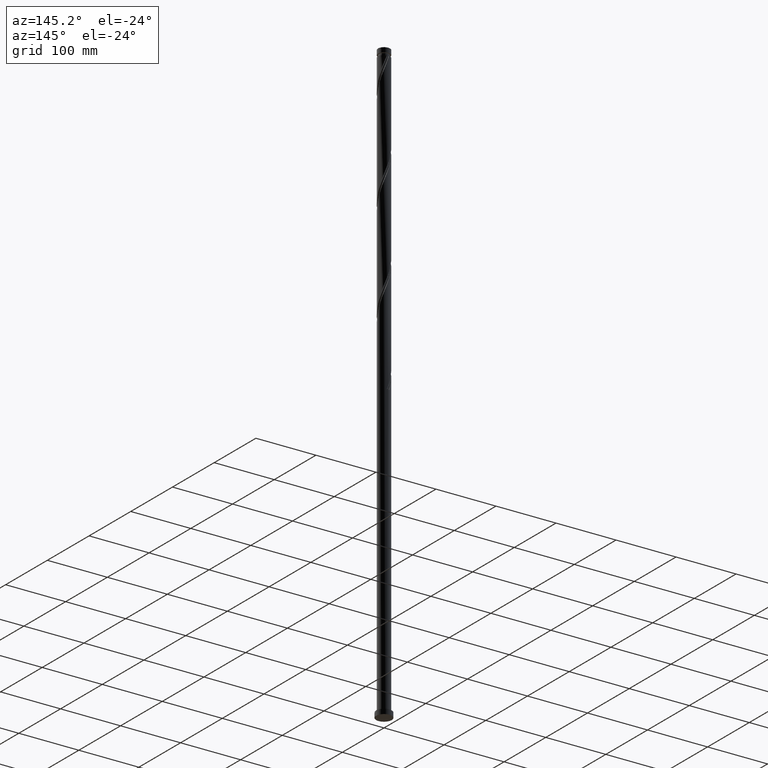
[diagram: clean part render]
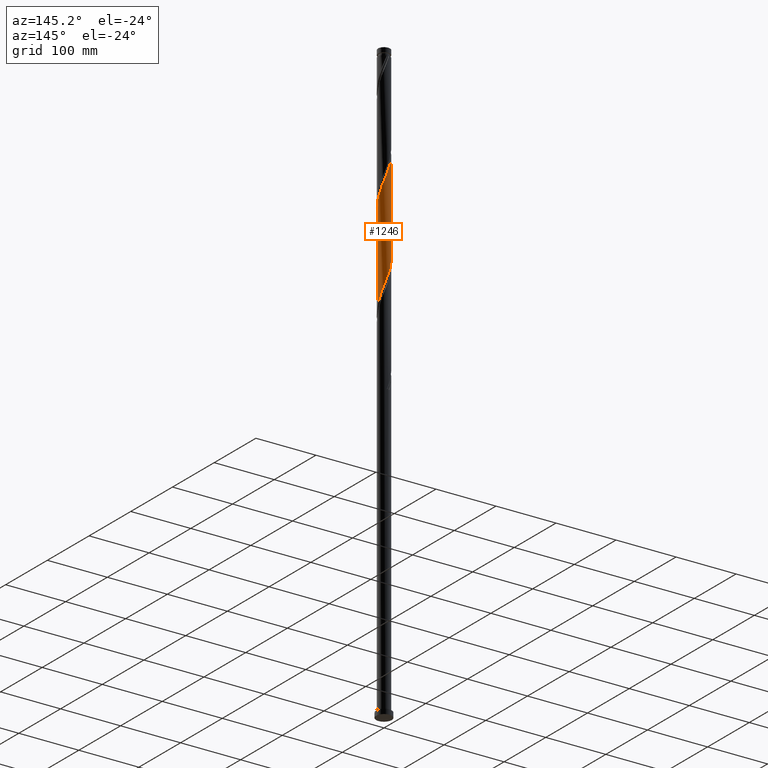
[diagram: same view with one face highlighted and labeled with its STEP entity id]
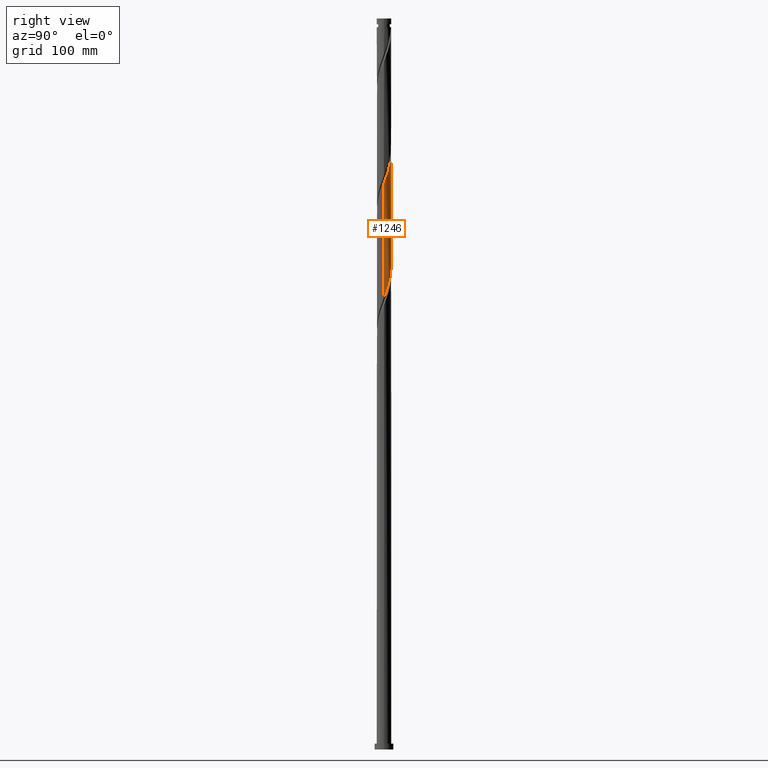
[diagram: same view with one face highlighted and labeled with its STEP entity id]
A machine part, auxiliary view. The second image highlights one B-rep face of the part: STEP entity #1246.
A second angle (right view) of the same face is appended — the face is thin or edge-on in the first view.
In plain terms, the highlighted cylindrical surface (edge-blend (fillet) strip) has radius 10 mm, axis along (-0, -0, -1).
Its self-contained STEP definition (entity closure, byte-faithful):
#32 = ORIENTED_EDGE ( 'NONE', *, *, #2404, .T. ) ;
#35 = CARTESIAN_POINT ( 'NONE',  ( 1.218698147331991777, 9.956614419138690053, 656.9961534534794509 ) ) ;
#36 = CARTESIAN_POINT ( 'NONE',  ( 7.338737473523957888, 6.838298630537159362, 794.4961534534796783 ) ) ;
#62 = CARTESIAN_POINT ( 'NONE',  ( -1.917712247535578785, 9.845901462098982648, 665.3294867868129359 ) ) ;
#63 = CARTESIAN_POINT ( 'NONE',  ( -1.989974874213251033, 9.800000000000013145, 821.5794867868129359 ) ) ;
#75 = CARTESIAN_POINT ( 'NONE',  ( -9.643385580861313144, 2.761251601094514285, 694.4961534534794509 ) ) ;
#92 = VERTEX_POINT ( 'NONE', #605 ) ;
#139 = VERTEX_POINT ( 'NONE', #430 ) ;
#162 = VERTEX_POINT ( 'NONE', #1526 ) ;
#174 = CARTESIAN_POINT ( 'NONE',  ( 9.424685787219461375, 3.434340355569663661, 627.8294867868127085 ) ) ;
#197 = DIRECTION ( 'NONE',  ( -1.000000000000000000, 0.000000000000000000, 0.000000000000000000 ) ) ;
#222 = CARTESIAN_POINT ( 'NONE',  ( 3.498532738731969349, 9.368045082941296897, 650.7461534534795646 ) ) ;
#223 = CARTESIAN_POINT ( 'NONE',  ( 9.990646392723412816, 0.4324172239434397325, 775.7461534534795646 ) ) ;
#248 = CARTESIAN_POINT ( 'NONE',  ( 4.235813876369419972, 9.092704585021287755, 648.6628201201463071 ) ) ;
#288 = CARTESIAN_POINT ( 'NONE',  ( -10.00000000000000178, 0.000000000000000000, 1000.000000000000000 ) ) ;
#371 = DIRECTION ( 'NONE',  ( -0.000000000000000000, -0.000000000000000000, -1.000000000000000000 ) ) ;
#380 = ORIENTED_EDGE ( 'NONE', *, *, #1499, .F. ) ;
#384 = FACE_OUTER_BOUND ( 'NONE', #1174, .T. ) ;
#408 = CARTESIAN_POINT ( 'NONE',  ( -0.3538636994451062057, 10.02467836630811426, 661.1628201201463071 ) ) ;
#409 = CARTESIAN_POINT ( 'NONE',  ( 4.866403606127479797, 8.771403069519754681, 802.8294867868127085 ) ) ;
#414 = VECTOR ( 'NONE', #606, 1000.000000000000000 ) ;
#421 = CARTESIAN_POINT ( 'NONE',  ( 9.935289914203547568, 1.135787973490340441, 621.5794867868127085 ) ) ;
#430 = CARTESIAN_POINT ( 'NONE',  ( 10.00000000000000355, 1.298574741823021473E-14, 618.5594316589274513 ) ) ;
#446 = CARTESIAN_POINT ( 'NONE',  ( 9.635293624659224676, 2.676026301552623110, 625.7461534534795646 ) ) ;
#461 = CARTESIAN_POINT ( 'NONE',  ( -9.935289914203563555, 1.135787973490345548, 854.9128201201461934 ) ) ;
#548 = CARTESIAN_POINT ( 'NONE',  ( -10.00000000000000178, 0.2163097758064046472, 701.3187526821943720 ) ) ;
#568 = CARTESIAN_POINT ( 'NONE',  ( 10.00000000000001421, 0.2163097758063950993, 775.1735542247647572 ) ) ;
#592 = CARTESIAN_POINT ( 'NONE',  ( 8.771403069519749351, 4.866403606127467363, 631.9961534534795646 ) ) ;
#593 = CARTESIAN_POINT ( 'NONE',  ( 9.643385580861325579, 2.761251601094518282, 781.9961534534794509 ) ) ;
#605 = CARTESIAN_POINT ( 'NONE',  ( -10.00000000000000355, 9.555718962242508133E-14, 701.8927649922605951 ) ) ;
#606 = DIRECTION ( 'NONE',  ( -0.000000000000000000, -0.000000000000000000, -1.000000000000000000 ) ) ;
#609 = CARTESIAN_POINT ( 'NONE',  ( -9.368045082941300450, 3.498532738731968905, 692.4128201201460797 ) ) ;
#610 = CARTESIAN_POINT ( 'NONE',  ( -7.370218964083914415, 6.758688661379373741, 838.2461534534793373 ) ) ;
#622 = CARTESIAN_POINT ( 'NONE',  ( -6.758688661379365747, 7.370218964083908197, 679.9128201201460797 ) ) ;
#624 = CARTESIAN_POINT ( 'NONE',  ( -9.635293624659231781, 2.676026301552627995, 850.7461534534792236 ) ) ;
#666 = CARTESIAN_POINT ( 'NONE',  ( -6.838298630537162914, 7.338737473523952559, 836.1628201201461934 ) ) ;
#744 =( BOUNDED_CURVE ( )  B_SPLINE_CURVE ( 2, ( #1357, #568, #223, #1181, #938, #593, #2265, #1369, #928, #978, #1166, #36, #1543, #2103, #1736, #409, #2117, #1688, #1039, #1943, #1223, #1777, #819, #1383, #63, #1623, #1802, #1970, #1789, #2184, #1408, #666, #610, #1762, #1583, #1049, #2337, #2323, #624, #1608, #461, #1596, #1008 ),
 .UNSPECIFIED., .F., .T. ) 
 B_SPLINE_CURVE_WITH_KNOTS ( ( 3, 2, 2, 2, 2, 2, 2, 2, 2, 2, 2, 2, 2, 2, 2, 2, 2, 2, 2, 2, 2, 3 ),
 ( 0.4295283537410736208, 0.4312500000000000222, 0.4375000000000000000, 0.4437499999999999778, 0.4499999999999999556, 0.4562500000000000444, 0.4625000000000000222, 0.4687500000000000000, 0.4749999999999999778, 0.4812499999999999556, 0.4875000000000000444, 0.4937500000000000222, 0.5000000000000000000, 0.5062499999999999778, 0.5124999999999999556, 0.5187500000000000444, 0.5250000000000000222, 0.5312500000000000000, 0.5374999999999999778, 0.5437499999999999556, 0.5500000000000000444, 0.5545283537410734542 ),
 .UNSPECIFIED. ) 
 CURVE ( )  GEOMETRIC_REPRESENTATION_ITEM ( )  RATIONAL_B_SPLINE_CURVE ( ( 0.9079722749903023082, 0.9083189438770126189, 0.9090909090909586876, 0.9062884852119839074, 0.9090909090909586876, 0.9062884852119839074, 0.9090909090909586876, 0.9062884852119839074, 0.9090909090909586876, 0.9062884852119839074, 0.9090909090909586876, 0.9062884852119839074, 0.9090909090909586876, 0.9062884852119839074, 0.9090909090909586876, 0.9062884852119839074, 0.9090909090909586876, 0.9062884852119839074, 0.9090909090909586876, 0.9062884852119839074, 0.9090909090909586876, 0.9062884852119839074, 0.9090909090909586876, 0.9062884852119839074, 0.9090909090909586876, 0.9062884852119839074, 0.9090909090909586876, 0.9062884852119839074, 0.9090909090909586876, 0.9062884852119839074, 0.9090909090909586876, 0.9062884852119839074, 0.9090909090909586876, 0.9062884852119839074, 0.9090909090909586876, 0.9062884852119839074, 0.9090909090909586876, 0.9062884852119839074, 0.9090909090909586876, 0.9062884852119839074, 0.9090909090909586876, 0.9070604504259300871, 0.9079722749903023082 ) ) 
 REPRESENTATION_ITEM ( '' )  );
#787 = CARTESIAN_POINT ( 'NONE',  ( 6.222187493342493880, 7.828434249432788761, 642.4128201201463071 ) ) ;
#818 = CARTESIAN_POINT ( 'NONE',  ( 7.370218964083908197, 6.758688661379363971, 638.2461534534795646 ) ) ;
#819 = CARTESIAN_POINT ( 'NONE',  ( -0.4324172239434393439, 9.990646392723412816, 817.4128201201461934 ) ) ;
#831 = CARTESIAN_POINT ( 'NONE',  ( -2.676026301552623554, 9.635293624659222900, 667.4128201201460797 ) ) ;
#873 = EDGE_CURVE ( 'NONE', #162, #92, #1962, .T. ) ;
#924 = ORIENTED_EDGE ( 'NONE', *, *, #873, .F. ) ;
#928 = CARTESIAN_POINT ( 'NONE',  ( 8.705417805181475899, 4.920945116258629959, 788.2461534534794509 ) ) ;
#938 = CARTESIAN_POINT ( 'NONE',  ( 9.800000000000013145, 1.989974874213251477, 779.9128201201460797 ) ) ;
#965 = CARTESIAN_POINT ( 'NONE',  ( 10.00000000000001421, 9.552733732950904056E-15, 774.5995419146984204 ) ) ;
#976 = CARTESIAN_POINT ( 'NONE',  ( 4.920945116258629959, 8.705417805181461688, 646.5794867868128222 ) ) ;
#978 = CARTESIAN_POINT ( 'NONE',  ( 8.318131025341649831, 5.606076356147839057, 790.3294867868129359 ) ) ;
#1005 = CARTESIAN_POINT ( 'NONE',  ( -9.092704585021285979, 4.235813876369422637, 690.3294867868125948 ) ) ;
#1008 = CARTESIAN_POINT ( 'NONE',  ( -10.00000000000001776, 8.657164945486758477E-16, 857.9328752480315643 ) ) ;
#1021 = CARTESIAN_POINT ( 'NONE',  ( -7.828434249432788761, 6.222187493342492104, 684.0794867868129359 ) ) ;
#1027 = DIRECTION ( 'NONE',  ( -0.000000000000000000, -0.000000000000000000, -1.000000000000000000 ) ) ;
#1039 = CARTESIAN_POINT ( 'NONE',  ( 2.676026301552629771, 9.635293624659231781, 809.0794867868127085 ) ) ;
#1049 = CARTESIAN_POINT ( 'NONE',  ( -8.771403069519758233, 4.866403606127474468, 844.4961534534795646 ) ) ;
#1124 = VECTOR ( 'NONE', #1027, 1000.000000000000000 ) ;
#1140 = CARTESIAN_POINT ( 'NONE',  ( 0.000000000000000000, 0.000000000000000000, 1000.000000000000000 ) ) ;
#1166 = CARTESIAN_POINT ( 'NONE',  ( 7.828434249432801195, 6.222187493342497433, 792.4128201201459660 ) ) ;
#1174 = EDGE_LOOP ( 'NONE', ( #380, #32, #2098, #924 ) ) ;
#1181 = CARTESIAN_POINT ( 'NONE',  ( 9.956614419138704264, 1.218698147331985560, 777.8294867868128222 ) ) ;
#1194 = CARTESIAN_POINT ( 'NONE',  ( -8.318131025341637397, 5.606076356147831952, 686.1628201201464208 ) ) ;
#1205 = CARTESIAN_POINT ( 'NONE',  ( -9.956614419138690053, 1.218698147331992665, 698.6628201201463071 ) ) ;
#1223 = CARTESIAN_POINT ( 'NONE',  ( 1.135787973490348435, 9.935289914203565331, 813.2461534534794509 ) ) ;
#1246 = ADVANCED_FACE ( 'NONE', ( #384 ), #2292, .T. ) ;
#1281 =( BOUNDED_CURVE ( )  B_SPLINE_CURVE ( 2, ( #1776, #548, #1582, #1205, #2322, #75, #609, #1005, #1915, #1194, #1021, #2130, #622, #1382, #1508, #2116, #1323, #1942, #831, #62, #2102, #408, #1735, #35, #1595, #2306, #222, #248, #976, #1368, #787, #1554, #818, #2348, #1954, #592, #2336, #174, #446, #2443, #421, #1394, #2144 ),
 .UNSPECIFIED., .F., .T. ) 
 B_SPLINE_CURVE_WITH_KNOTS ( ( 3, 2, 2, 2, 2, 2, 2, 2, 2, 2, 2, 2, 2, 2, 2, 2, 2, 2, 2, 2, 2, 3 ),
 ( 0.6795283537410736763, 0.6812500000000000222, 0.6875000000000000000, 0.6937499999999999778, 0.6999999999999999556, 0.7062500000000000444, 0.7125000000000000222, 0.7187500000000000000, 0.7249999999999999778, 0.7312499999999999556, 0.7375000000000000444, 0.7437500000000000222, 0.7500000000000000000, 0.7562499999999999778, 0.7624999999999999556, 0.7687500000000000444, 0.7750000000000000222, 0.7812500000000000000, 0.7874999999999999778, 0.7937499999999999556, 0.8000000000000000444, 0.8045283537410733432 ),
 .UNSPECIFIED. ) 
 CURVE ( )  GEOMETRIC_REPRESENTATION_ITEM ( )  RATIONAL_B_SPLINE_CURVE ( ( 0.9079722749902968681, 0.9083189438770071789, 0.9090909090909532475, 0.9062884852119784673, 0.9090909090909532475, 0.9062884852119784673, 0.9090909090909532475, 0.9062884852119784673, 0.9090909090909532475, 0.9062884852119784673, 0.9090909090909532475, 0.9062884852119784673, 0.9090909090909532475, 0.9062884852119784673, 0.9090909090909532475, 0.9062884852119784673, 0.9090909090909532475, 0.9062884852119784673, 0.9090909090909532475, 0.9062884852119784673, 0.9090909090909532475, 0.9062884852119784673, 0.9090909090909532475, 0.9062884852119784673, 0.9090909090909532475, 0.9062884852119784673, 0.9090909090909532475, 0.9062884852119784673, 0.9090909090909532475, 0.9062884852119784673, 0.9090909090909532475, 0.9062884852119784673, 0.9090909090909532475, 0.9062884852119784673, 0.9090909090909532475, 0.9062884852119784673, 0.9090909090909532475, 0.9062884852119784673, 0.9090909090909532475, 0.9062884852119784673, 0.9090909090909532475, 0.9070604504259247580, 0.9079722749902967571 ) ) 
 REPRESENTATION_ITEM ( '' )  );
#1323 = CARTESIAN_POINT ( 'NONE',  ( -4.150371980848566622, 9.098044428369604475, 671.5794867868129359 ) ) ;
#1357 = CARTESIAN_POINT ( 'NONE',  ( 10.00000000000001421, 9.552733732950904056E-15, 774.5995419146984204 ) ) ;
#1364 = VERTEX_POINT ( 'NONE', #965 ) ;
#1368 = CARTESIAN_POINT ( 'NONE',  ( 5.606076356147837281, 8.318131025341633844, 644.4961534534796783 ) ) ;
#1369 = CARTESIAN_POINT ( 'NONE',  ( 9.092704585021301966, 4.235813876369419084, 786.1628201201461934 ) ) ;
#1382 = CARTESIAN_POINT ( 'NONE',  ( -6.178639849234791370, 7.902139297630660586, 677.8294867868127085 ) ) ;
#1383 = CARTESIAN_POINT ( 'NONE',  ( -1.218698147331984893, 9.956614419138704264, 819.4961534534793373 ) ) ;
#1394 = CARTESIAN_POINT ( 'NONE',  ( 10.00000000000000000, 0.5697373744643259297, 620.0713201772722414 ) ) ;
#1408 = CARTESIAN_POINT ( 'NONE',  ( -6.222187493342498321, 7.828434249432799419, 834.0794867868127085 ) ) ;
#1499 = EDGE_CURVE ( 'NONE', #1364, #162, #744, .T. ) ;
#1508 = CARTESIAN_POINT ( 'NONE',  ( -5.522521727681128034, 8.336771183575205413, 675.7461534534795646 ) ) ;
#1526 = CARTESIAN_POINT ( 'NONE',  ( -10.00000000000001776, 8.657164945486758477E-16, 857.9328752480316780 ) ) ;
#1543 = CARTESIAN_POINT ( 'NONE',  ( 6.758688661379377294, 7.370218964083912638, 796.5794867868129359 ) ) ;
#1554 = CARTESIAN_POINT ( 'NONE',  ( 6.838298630537154921, 7.338737473523941901, 640.3294867868130495 ) ) ;
#1582 = CARTESIAN_POINT ( 'NONE',  ( -9.990646392723402158, 0.4324172239434433962, 700.7461534534794509 ) ) ;
#1583 = CARTESIAN_POINT ( 'NONE',  ( -8.336771183575212518, 5.522521727681138692, 842.4128201201460797 ) ) ;
#1595 = CARTESIAN_POINT ( 'NONE',  ( 1.989974874213254807, 9.799999999999997158, 654.9128201201461934 ) ) ;
#1596 = CARTESIAN_POINT ( 'NONE',  ( -10.00000000000001954, 0.5697373744643199345, 856.4209867296865468 ) ) ;
#1608 = CARTESIAN_POINT ( 'NONE',  ( -9.845901462098996859, 1.917712247535583447, 852.8294867868128222 ) ) ;
#1623 = CARTESIAN_POINT ( 'NONE',  ( -2.761251601094515173, 9.643385580861325579, 823.6628201201463071 ) ) ;
#1688 = CARTESIAN_POINT ( 'NONE',  ( 3.434340355569672987, 9.424685787219470257, 806.9961534534794509 ) ) ;
#1735 = CARTESIAN_POINT ( 'NONE',  ( 0.4324172239434426745, 9.990646392723402158, 659.0794867868128222 ) ) ;
#1736 = CARTESIAN_POINT ( 'NONE',  ( 5.522521727681138692, 8.336771183575210742, 800.7461534534794509 ) ) ;
#1762 = CARTESIAN_POINT ( 'NONE',  ( -7.902139297630669468, 6.178639849234801140, 840.3294867868128222 ) ) ;
#1776 = CARTESIAN_POINT ( 'NONE',  ( -10.00000000000000355, 9.555718962242508133E-14, 701.8927649922605951 ) ) ;
#1777 = CARTESIAN_POINT ( 'NONE',  ( 0.3538636994451059281, 10.02467836630812492, 815.3294867868127085 ) ) ;
#1789 = CARTESIAN_POINT ( 'NONE',  ( -4.920945116258632623, 8.705417805181475899, 829.9128201201461934 ) ) ;
#1802 = CARTESIAN_POINT ( 'NONE',  ( -3.498532738731971126, 9.368045082941311108, 825.7461534534793373 ) ) ;
#1915 = CARTESIAN_POINT ( 'NONE',  ( -8.705417805181461688, 4.920945116258628182, 688.2461534534796783 ) ) ;
#1942 = CARTESIAN_POINT ( 'NONE',  ( -3.434340355569668546, 9.424685787219459598, 669.4961534534794509 ) ) ;
#1943 = CARTESIAN_POINT ( 'NONE',  ( 1.917712247535589665, 9.845901462098996859, 811.1628201201461934 ) ) ;
#1954 = CARTESIAN_POINT ( 'NONE',  ( 8.336771183575205413, 5.522521727681127146, 634.0794867868130495 ) ) ;
#1962 = LINE ( 'NONE', #288, #1124 ) ;
#1970 = CARTESIAN_POINT ( 'NONE',  ( -4.235813876369424413, 9.092704585021298413, 827.8294867868127085 ) ) ;
#2026 = EDGE_CURVE ( 'NONE', #92, #139, #1281, .T. ) ;
#2098 = ORIENTED_EDGE ( 'NONE', *, *, #2026, .F. ) ;
#2102 = CARTESIAN_POINT ( 'NONE',  ( -1.135787973490342662, 9.935289914203547568, 663.2461534534794509 ) ) ;
#2103 = CARTESIAN_POINT ( 'NONE',  ( 6.178639849234798476, 7.902139297630671244, 798.6628201201459660 ) ) ;
#2116 = CARTESIAN_POINT ( 'NONE',  ( -4.866403606127465586, 8.771403069519749351, 673.6628201201460797 ) ) ;
#2117 = CARTESIAN_POINT ( 'NONE',  ( 4.150371980848576392, 9.098044428369609804, 804.9128201201458523 ) ) ;
#2130 = CARTESIAN_POINT ( 'NONE',  ( -7.338737473523941901, 6.838298630537155809, 681.9961534534795646 ) ) ;
#2144 = CARTESIAN_POINT ( 'NONE',  ( 10.00000000000000355, 1.298574741823021473E-14, 618.5594316589274513 ) ) ;
#2184 = CARTESIAN_POINT ( 'NONE',  ( -5.606076356147837281, 8.318131025341649831, 831.9961534534794509 ) ) ;
#2265 = CARTESIAN_POINT ( 'NONE',  ( 9.368045082941311108, 3.498532738731969349, 784.0794867868125948 ) ) ;
#2274 = LINE ( 'NONE', #2332, #414 ) ;
#2292 = CYLINDRICAL_SURFACE ( 'NONE', #2363, 10.00000000000000178 ) ;
#2306 = CARTESIAN_POINT ( 'NONE',  ( 2.761251601094519614, 9.643385580861311368, 652.8294867868131632 ) ) ;
#2322 = CARTESIAN_POINT ( 'NONE',  ( -9.799999999999997158, 1.989974874213252809, 696.5794867868127085 ) ) ;
#2323 = CARTESIAN_POINT ( 'NONE',  ( -9.424685787219470257, 3.434340355569674319, 848.6628201201461934 ) ) ;
#2332 = CARTESIAN_POINT ( 'NONE',  ( 10.00000000000000178, 1.224646799147353454E-15, 1000.000000000000000 ) ) ;
#2336 = CARTESIAN_POINT ( 'NONE',  ( 9.098044428369604475, 4.150371980848564846, 629.9128201201461934 ) ) ;
#2337 = CARTESIAN_POINT ( 'NONE',  ( -9.098044428369613357, 4.150371980848573727, 846.5794867868125948 ) ) ;
#2348 = CARTESIAN_POINT ( 'NONE',  ( 7.902139297630664139, 6.178639849234786929, 636.1628201201461934 ) ) ;
#2363 = AXIS2_PLACEMENT_3D ( 'NONE', #1140, #371, #197 ) ;
#2404 = EDGE_CURVE ( 'NONE', #1364, #139, #2274, .T. ) ;
#2443 = CARTESIAN_POINT ( 'NONE',  ( 9.845901462098982648, 1.917712247535581227, 623.6628201201460797 ) ) ;